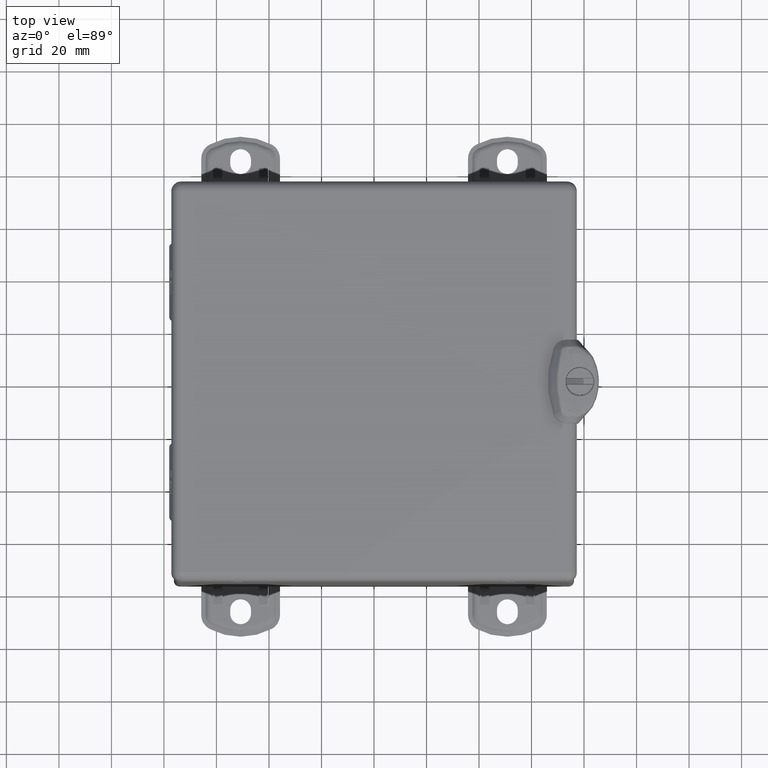
[diagram: clean part render]
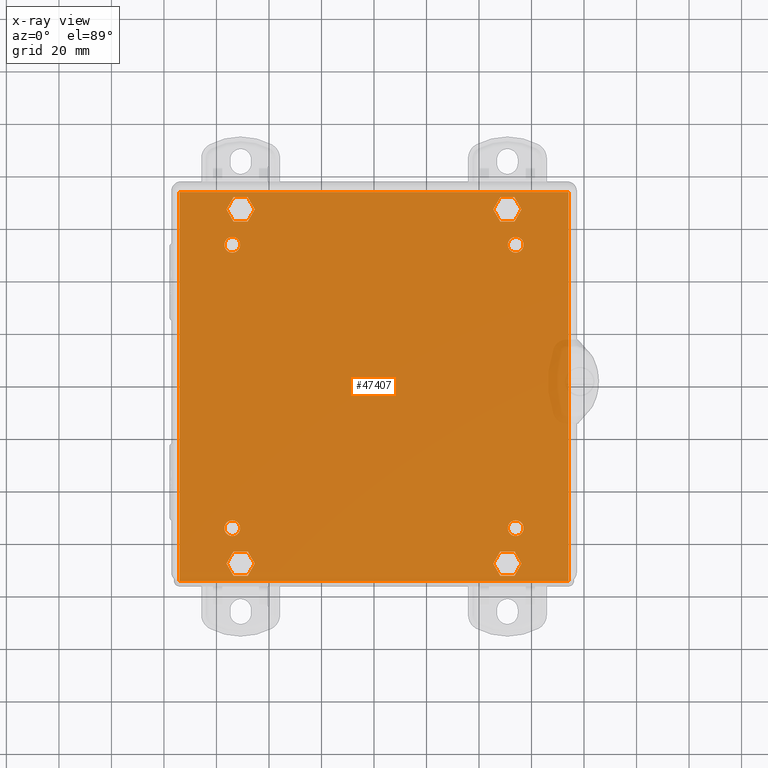
[diagram: x-ray — body ghosted, one internal face saturated and labeled with its STEP entity id]
A machine part, top view, then the same camera in x-ray: the body is ghosted and one INTERNAL B-rep face — a face not visible from any outside direction — is saturated and labeled: STEP entity #47407.
In plain terms, the highlighted planar face has unit normal (0, 0, 1).
Its self-contained STEP definition (entity closure, byte-faithful):
#1984=FACE_BOUND('',#7198,.T.);
#1985=FACE_BOUND('',#7199,.T.);
#1986=FACE_BOUND('',#7200,.T.);
#1987=FACE_BOUND('',#7201,.T.);
#1988=FACE_BOUND('',#7202,.T.);
#1989=FACE_BOUND('',#7203,.T.);
#1990=FACE_BOUND('',#7204,.T.);
#1991=FACE_BOUND('',#7205,.T.);
#2974=PLANE('',#51108);
#4238=FACE_OUTER_BOUND('',#7197,.T.);
#7197=EDGE_LOOP('',(#32666,#32667,#32668,#32669));
#7198=EDGE_LOOP('',(#32670));
#7199=EDGE_LOOP('',(#32671));
#7200=EDGE_LOOP('',(#32672));
#7201=EDGE_LOOP('',(#32673));
#7202=EDGE_LOOP('',(#32674,#32675,#32676,#32677,#32678,#32679));
#7203=EDGE_LOOP('',(#32680,#32681,#32682,#32683,#32684,#32685));
#7204=EDGE_LOOP('',(#32686,#32687,#32688,#32689,#32690,#32691));
#7205=EDGE_LOOP('',(#32692,#32693,#32694,#32695,#32696,#32697));
#10095=LINE('',#68152,#14123);
#10099=LINE('',#68159,#14127);
#10102=LINE('',#68165,#14130);
#10105=LINE('',#68171,#14133);
#10107=LINE('',#68176,#14135);
#10110=LINE('',#68180,#14138);
#10113=LINE('',#68188,#14141);
#10117=LINE('',#68195,#14145);
#10120=LINE('',#68201,#14148);
#10123=LINE('',#68207,#14151);
#10125=LINE('',#68212,#14153);
#10128=LINE('',#68216,#14156);
#10131=LINE('',#68224,#14159);
#10135=LINE('',#68231,#14163);
#10138=LINE('',#68237,#14166);
#10141=LINE('',#68243,#14169);
#10143=LINE('',#68248,#14171);
#10146=LINE('',#68252,#14174);
#10149=LINE('',#68260,#14177);
#10153=LINE('',#68267,#14181);
#10156=LINE('',#68273,#14184);
#10159=LINE('',#68279,#14187);
#10161=LINE('',#68284,#14189);
#10164=LINE('',#68288,#14192);
#10362=LINE('',#69525,#14390);
#10363=LINE('',#69527,#14391);
#10364=LINE('',#69529,#14392);
#10365=LINE('',#69531,#14393);
#14123=VECTOR('',#55256,0.393700787401575);
#14127=VECTOR('',#55262,0.393700787401575);
#14130=VECTOR('',#55267,0.393700787401575);
#14133=VECTOR('',#55272,0.393700787401575);
#14135=VECTOR('',#55276,0.393700787401575);
#14138=VECTOR('',#55281,0.393700787401575);
#14141=VECTOR('',#55286,0.393700787401575);
#14145=VECTOR('',#55292,0.393700787401575);
#14148=VECTOR('',#55297,0.393700787401575);
#14151=VECTOR('',#55302,0.393700787401575);
#14153=VECTOR('',#55306,0.393700787401575);
#14156=VECTOR('',#55311,0.393700787401575);
#14159=VECTOR('',#55316,0.393700787401575);
#14163=VECTOR('',#55322,0.393700787401575);
#14166=VECTOR('',#55327,0.393700787401575);
#14169=VECTOR('',#55332,0.393700787401575);
#14171=VECTOR('',#55336,0.393700787401575);
#14174=VECTOR('',#55341,0.393700787401575);
#14177=VECTOR('',#55346,0.393700787401575);
#14181=VECTOR('',#55352,0.393700787401575);
#14184=VECTOR('',#55357,0.393700787401575);
#14187=VECTOR('',#55362,0.393700787401575);
#14189=VECTOR('',#55366,0.393700787401575);
#14192=VECTOR('',#55371,0.393700787401575);
#14390=VECTOR('',#56139,0.393700787401575);
#14391=VECTOR('',#56142,0.393700787401575);
#14392=VECTOR('',#56145,0.393700787401575);
#14393=VECTOR('',#56148,0.393700787401575);
#18145=CIRCLE('',#50786,0.118);
#18147=CIRCLE('',#50789,0.118);
#18149=CIRCLE('',#50792,0.118);
#18151=CIRCLE('',#50795,0.118);
#20035=VERTEX_POINT('',#68122);
#20037=VERTEX_POINT('',#68128);
#20039=VERTEX_POINT('',#68134);
#20041=VERTEX_POINT('',#68140);
#20045=VERTEX_POINT('',#68149);
#20046=VERTEX_POINT('',#68151);
#20048=VERTEX_POINT('',#68157);
#20050=VERTEX_POINT('',#68163);
#20052=VERTEX_POINT('',#68169);
#20054=VERTEX_POINT('',#68175);
#20057=VERTEX_POINT('',#68185);
#20058=VERTEX_POINT('',#68187);
#20060=VERTEX_POINT('',#68193);
#20062=VERTEX_POINT('',#68199);
#20064=VERTEX_POINT('',#68205);
#20066=VERTEX_POINT('',#68211);
#20069=VERTEX_POINT('',#68221);
#20070=VERTEX_POINT('',#68223);
#20072=VERTEX_POINT('',#68229);
#20074=VERTEX_POINT('',#68235);
#20076=VERTEX_POINT('',#68241);
#20078=VERTEX_POINT('',#68247);
#20081=VERTEX_POINT('',#68257);
#20082=VERTEX_POINT('',#68259);
#20084=VERTEX_POINT('',#68265);
#20086=VERTEX_POINT('',#68271);
#20088=VERTEX_POINT('',#68277);
#20090=VERTEX_POINT('',#68283);
#20191=VERTEX_POINT('',#68861);
#20193=VERTEX_POINT('',#68869);
#20196=VERTEX_POINT('',#68878);
#20198=VERTEX_POINT('',#68889);
#24515=EDGE_CURVE('',#20035,#20035,#18145,.T.);
#24518=EDGE_CURVE('',#20037,#20037,#18147,.T.);
#24521=EDGE_CURVE('',#20039,#20039,#18149,.T.);
#24524=EDGE_CURVE('',#20041,#20041,#18151,.T.);
#24529=EDGE_CURVE('',#20046,#20045,#10095,.T.);
#24533=EDGE_CURVE('',#20045,#20048,#10099,.T.);
#24536=EDGE_CURVE('',#20048,#20050,#10102,.T.);
#24539=EDGE_CURVE('',#20050,#20052,#10105,.T.);
#24541=EDGE_CURVE('',#20054,#20046,#10107,.T.);
#24544=EDGE_CURVE('',#20052,#20054,#10110,.T.);
#24547=EDGE_CURVE('',#20058,#20057,#10113,.T.);
#24551=EDGE_CURVE('',#20057,#20060,#10117,.T.);
#24554=EDGE_CURVE('',#20060,#20062,#10120,.T.);
#24557=EDGE_CURVE('',#20062,#20064,#10123,.T.);
#24559=EDGE_CURVE('',#20066,#20058,#10125,.T.);
#24562=EDGE_CURVE('',#20064,#20066,#10128,.T.);
#24565=EDGE_CURVE('',#20070,#20069,#10131,.T.);
#24569=EDGE_CURVE('',#20069,#20072,#10135,.T.);
#24572=EDGE_CURVE('',#20072,#20074,#10138,.T.);
#24575=EDGE_CURVE('',#20074,#20076,#10141,.T.);
#24577=EDGE_CURVE('',#20078,#20070,#10143,.T.);
#24580=EDGE_CURVE('',#20076,#20078,#10146,.T.);
#24583=EDGE_CURVE('',#20082,#20081,#10149,.T.);
#24587=EDGE_CURVE('',#20081,#20084,#10153,.T.);
#24590=EDGE_CURVE('',#20084,#20086,#10156,.T.);
#24593=EDGE_CURVE('',#20086,#20088,#10159,.T.);
#24595=EDGE_CURVE('',#20090,#20082,#10161,.T.);
#24598=EDGE_CURVE('',#20088,#20090,#10164,.T.);
#24962=EDGE_CURVE('',#20196,#20198,#10362,.T.);
#24963=EDGE_CURVE('',#20191,#20198,#10363,.T.);
#24964=EDGE_CURVE('',#20193,#20196,#10364,.T.);
#24965=EDGE_CURVE('',#20191,#20193,#10365,.T.);
#32666=ORIENTED_EDGE('',*,*,#24963,.T.);
#32667=ORIENTED_EDGE('',*,*,#24962,.F.);
#32668=ORIENTED_EDGE('',*,*,#24964,.F.);
#32669=ORIENTED_EDGE('',*,*,#24965,.F.);
#32670=ORIENTED_EDGE('',*,*,#24515,.T.);
#32671=ORIENTED_EDGE('',*,*,#24518,.T.);
#32672=ORIENTED_EDGE('',*,*,#24521,.T.);
#32673=ORIENTED_EDGE('',*,*,#24524,.T.);
#32674=ORIENTED_EDGE('',*,*,#24536,.T.);
#32675=ORIENTED_EDGE('',*,*,#24539,.T.);
#32676=ORIENTED_EDGE('',*,*,#24544,.T.);
#32677=ORIENTED_EDGE('',*,*,#24541,.T.);
#32678=ORIENTED_EDGE('',*,*,#24529,.T.);
#32679=ORIENTED_EDGE('',*,*,#24533,.T.);
#32680=ORIENTED_EDGE('',*,*,#24554,.T.);
#32681=ORIENTED_EDGE('',*,*,#24557,.T.);
#32682=ORIENTED_EDGE('',*,*,#24562,.T.);
#32683=ORIENTED_EDGE('',*,*,#24559,.T.);
#32684=ORIENTED_EDGE('',*,*,#24547,.T.);
#32685=ORIENTED_EDGE('',*,*,#24551,.T.);
#32686=ORIENTED_EDGE('',*,*,#24572,.T.);
#32687=ORIENTED_EDGE('',*,*,#24575,.T.);
#32688=ORIENTED_EDGE('',*,*,#24580,.T.);
#32689=ORIENTED_EDGE('',*,*,#24577,.T.);
#32690=ORIENTED_EDGE('',*,*,#24565,.T.);
#32691=ORIENTED_EDGE('',*,*,#24569,.T.);
#32692=ORIENTED_EDGE('',*,*,#24590,.T.);
#32693=ORIENTED_EDGE('',*,*,#24593,.T.);
#32694=ORIENTED_EDGE('',*,*,#24598,.T.);
#32695=ORIENTED_EDGE('',*,*,#24595,.T.);
#32696=ORIENTED_EDGE('',*,*,#24583,.T.);
#32697=ORIENTED_EDGE('',*,*,#24587,.T.);
#47407=ADVANCED_FACE('',(#4238,#1984,#1985,#1986,#1987,#1988,#1989,#1990,
#1991),#2974,.T.);
#50786=AXIS2_PLACEMENT_3D('',#68123,#55226,#55227);
#50789=AXIS2_PLACEMENT_3D('',#68129,#55233,#55234);
#50792=AXIS2_PLACEMENT_3D('',#68135,#55240,#55241);
#50795=AXIS2_PLACEMENT_3D('',#68141,#55247,#55248);
#51108=AXIS2_PLACEMENT_3D('',#69530,#56146,#56147);
#55226=DIRECTION('center_axis',(0.,0.,-1.));
#55227=DIRECTION('ref_axis',(-2.22044604925031E-16,-1.,0.));
#55233=DIRECTION('center_axis',(0.,0.,-1.));
#55234=DIRECTION('ref_axis',(-2.22044604925031E-16,-1.,0.));
#55240=DIRECTION('center_axis',(0.,0.,-1.));
#55241=DIRECTION('ref_axis',(-2.22044604925031E-16,-1.,0.));
#55247=DIRECTION('center_axis',(0.,0.,-1.));
#55248=DIRECTION('ref_axis',(-2.22044604925031E-16,-1.,0.));
#55256=DIRECTION('',(-1.,3.25429695590814E-16,0.));
#55262=DIRECTION('',(-0.5,0.866025403784439,0.));
#55267=DIRECTION('',(0.5,0.866025403784439,0.));
#55272=DIRECTION('',(1.,-1.52744235934653E-17,0.));
#55276=DIRECTION('',(-0.5,-0.866025403784439,0.));
#55281=DIRECTION('',(0.5,-0.866025403784439,0.));
#55286=DIRECTION('',(1.,1.18659514259248E-16,0.));
#55292=DIRECTION('',(0.5,-0.866025403784438,0.));
#55297=DIRECTION('',(-0.5,-0.866025403784439,0.));
#55302=DIRECTION('',(-1.,-4.28814786256597E-16,0.));
#55306=DIRECTION('',(0.5,0.866025403784439,0.));
#55311=DIRECTION('',(-0.5,0.866025403784438,0.));
#55316=DIRECTION('',(1.,1.18659514259248E-16,0.));
#55322=DIRECTION('',(0.5,-0.866025403784438,0.));
#55327=DIRECTION('',(-0.5,-0.866025403784439,0.));
#55332=DIRECTION('',(-1.,-4.28814786256597E-16,0.));
#55336=DIRECTION('',(0.5,0.866025403784439,0.));
#55341=DIRECTION('',(-0.5,0.866025403784438,0.));
#55346=DIRECTION('',(-1.,3.25429695590814E-16,0.));
#55352=DIRECTION('',(-0.5,0.866025403784439,0.));
#55357=DIRECTION('',(0.5,0.866025403784439,0.));
#55362=DIRECTION('',(1.,-1.52744235934653E-17,0.));
#55366=DIRECTION('',(-0.5,-0.866025403784439,0.));
#55371=DIRECTION('',(0.5,-0.866025403784439,0.));
#56139=DIRECTION('',(-1.34234899264873E-17,-1.,0.));
#56142=DIRECTION('',(1.,0.,0.));
#56145=DIRECTION('',(1.,-3.04444751532733E-17,0.));
#56146=DIRECTION('center_axis',(0.,0.,1.));
#56147=DIRECTION('ref_axis',(1.,0.,0.));
#56148=DIRECTION('',(1.34234899264873E-17,1.,0.));
#68122=CARTESIAN_POINT('',(2.125,-2.007,0.053));
#68123=CARTESIAN_POINT('Origin',(2.125,-2.125,0.053));
#68128=CARTESIAN_POINT('',(-2.125,-2.007,0.053));
#68129=CARTESIAN_POINT('Origin',(-2.125,-2.125,0.053));
#68134=CARTESIAN_POINT('',(-2.125,2.243,0.053));
#68135=CARTESIAN_POINT('Origin',(-2.125,2.125,0.053));
#68140=CARTESIAN_POINT('',(2.125,2.243,0.053));
#68141=CARTESIAN_POINT('Origin',(2.125,2.125,0.053));
#68149=CARTESIAN_POINT('',(-2.10569601384771,2.47292913385827,0.053));
#68151=CARTESIAN_POINT('',(-1.89430398615229,2.47292913385827,0.053));
#68152=CARTESIAN_POINT('',(-1.05284800692385,2.47292913385827,0.053));
#68157=CARTESIAN_POINT('',(-2.21139202769541,2.656,0.053));
#68159=CARTESIAN_POINT('',(-1.35992715612062,1.18121958157235,0.053));
#68163=CARTESIAN_POINT('',(-2.10569601384771,2.83907086614173,0.053));
#68165=CARTESIAN_POINT('',(-2.4571608854225,2.23031585149852,0.053));
#68169=CARTESIAN_POINT('',(-1.89430398615229,2.83907086614173,0.053));
#68171=CARTESIAN_POINT('',(-0.947151993076146,2.83907086614173,0.053));
#68175=CARTESIAN_POINT('',(-1.78860797230459,2.656,0.053));
#68176=CARTESIAN_POINT('',(-2.19292085080323,1.95570955228592,0.053));
#68180=CARTESIAN_POINT('',(-0.989991107653645,1.27275501464321,0.053));
#68185=CARTESIAN_POINT('',(2.10569601384771,-2.47292913385827,0.053));
#68187=CARTESIAN_POINT('',(1.89430398615229,-2.47292913385827,0.053));
#68188=CARTESIAN_POINT('',(1.05284800692385,-2.47292913385827,0.053));
#68193=CARTESIAN_POINT('',(2.21139202769541,-2.656,0.053));
#68195=CARTESIAN_POINT('',(1.35992715612062,-1.18121958157235,0.053));
#68199=CARTESIAN_POINT('',(2.10569601384771,-2.83907086614173,0.053));
#68201=CARTESIAN_POINT('',(2.4571608854225,-2.23031585149852,0.053));
#68205=CARTESIAN_POINT('',(1.89430398615229,-2.83907086614173,0.053));
#68207=CARTESIAN_POINT('',(0.947151993076147,-2.83907086614173,0.053));
#68211=CARTESIAN_POINT('',(1.78860797230459,-2.656,0.053));
#68212=CARTESIAN_POINT('',(2.19292085080323,-1.95570955228592,0.053));
#68216=CARTESIAN_POINT('',(0.989991107653644,-1.27275501464321,0.053));
#68221=CARTESIAN_POINT('',(-1.89430398615229,-2.47292913385827,0.053));
#68223=CARTESIAN_POINT('',(-2.10569601384771,-2.47292913385827,0.053));
#68224=CARTESIAN_POINT('',(-0.947151993076146,-2.47292913385827,0.053));
#68229=CARTESIAN_POINT('',(-1.78860797230459,-2.656,0.053));
#68231=CARTESIAN_POINT('',(-2.14007284387938,-2.04724498535679,0.053));
#68235=CARTESIAN_POINT('',(-1.89430398615229,-2.83907086614173,0.053));
#68237=CARTESIAN_POINT('',(-1.0428391145775,-1.36429044771408,0.053));
#68241=CARTESIAN_POINT('',(-2.10569601384771,-2.83907086614173,0.053));
#68243=CARTESIAN_POINT('',(-1.05284800692385,-2.83907086614173,0.053));
#68247=CARTESIAN_POINT('',(-2.21139202769541,-2.656,0.053));
#68248=CARTESIAN_POINT('',(-1.30707914919677,-1.08968414850148,0.053));
#68252=CARTESIAN_POINT('',(-2.51000889234635,-2.13878041842765,0.053));
#68257=CARTESIAN_POINT('',(1.89430398615229,2.47292913385827,0.053));
#68259=CARTESIAN_POINT('',(2.10569601384771,2.47292913385827,0.053));
#68260=CARTESIAN_POINT('',(0.947151993076147,2.47292913385827,0.053));
#68265=CARTESIAN_POINT('',(1.78860797230459,2.656,0.053));
#68267=CARTESIAN_POINT('',(2.14007284387938,2.04724498535679,0.053));
#68271=CARTESIAN_POINT('',(1.89430398615229,2.83907086614173,0.053));
#68273=CARTESIAN_POINT('',(1.0428391145775,1.36429044771408,0.053));
#68277=CARTESIAN_POINT('',(2.10569601384771,2.83907086614173,0.053));
#68279=CARTESIAN_POINT('',(1.05284800692385,2.83907086614173,0.053));
#68283=CARTESIAN_POINT('',(2.21139202769541,2.656,0.053));
#68284=CARTESIAN_POINT('',(1.30707914919677,1.08968414850148,0.053));
#68288=CARTESIAN_POINT('',(2.51000889234635,2.13878041842765,0.053));
#68861=CARTESIAN_POINT('',(-2.91599999999999,-2.916,0.053));
#68869=CARTESIAN_POINT('',(-2.916,2.916,0.053));
#68878=CARTESIAN_POINT('',(2.916,2.916,0.053));
#68889=CARTESIAN_POINT('',(2.916,-2.91599999999993,0.053));
#69525=CARTESIAN_POINT('',(2.916,-1.9363384218958E-17,0.053));
#69527=CARTESIAN_POINT('',(-1.5,-2.916,0.053));
#69529=CARTESIAN_POINT('',(4.39161554085968E-17,2.916,0.053));
#69530=CARTESIAN_POINT('Origin',(0.,0.,0.053));
#69531=CARTESIAN_POINT('',(-2.916,1.9363384218958E-17,0.053));